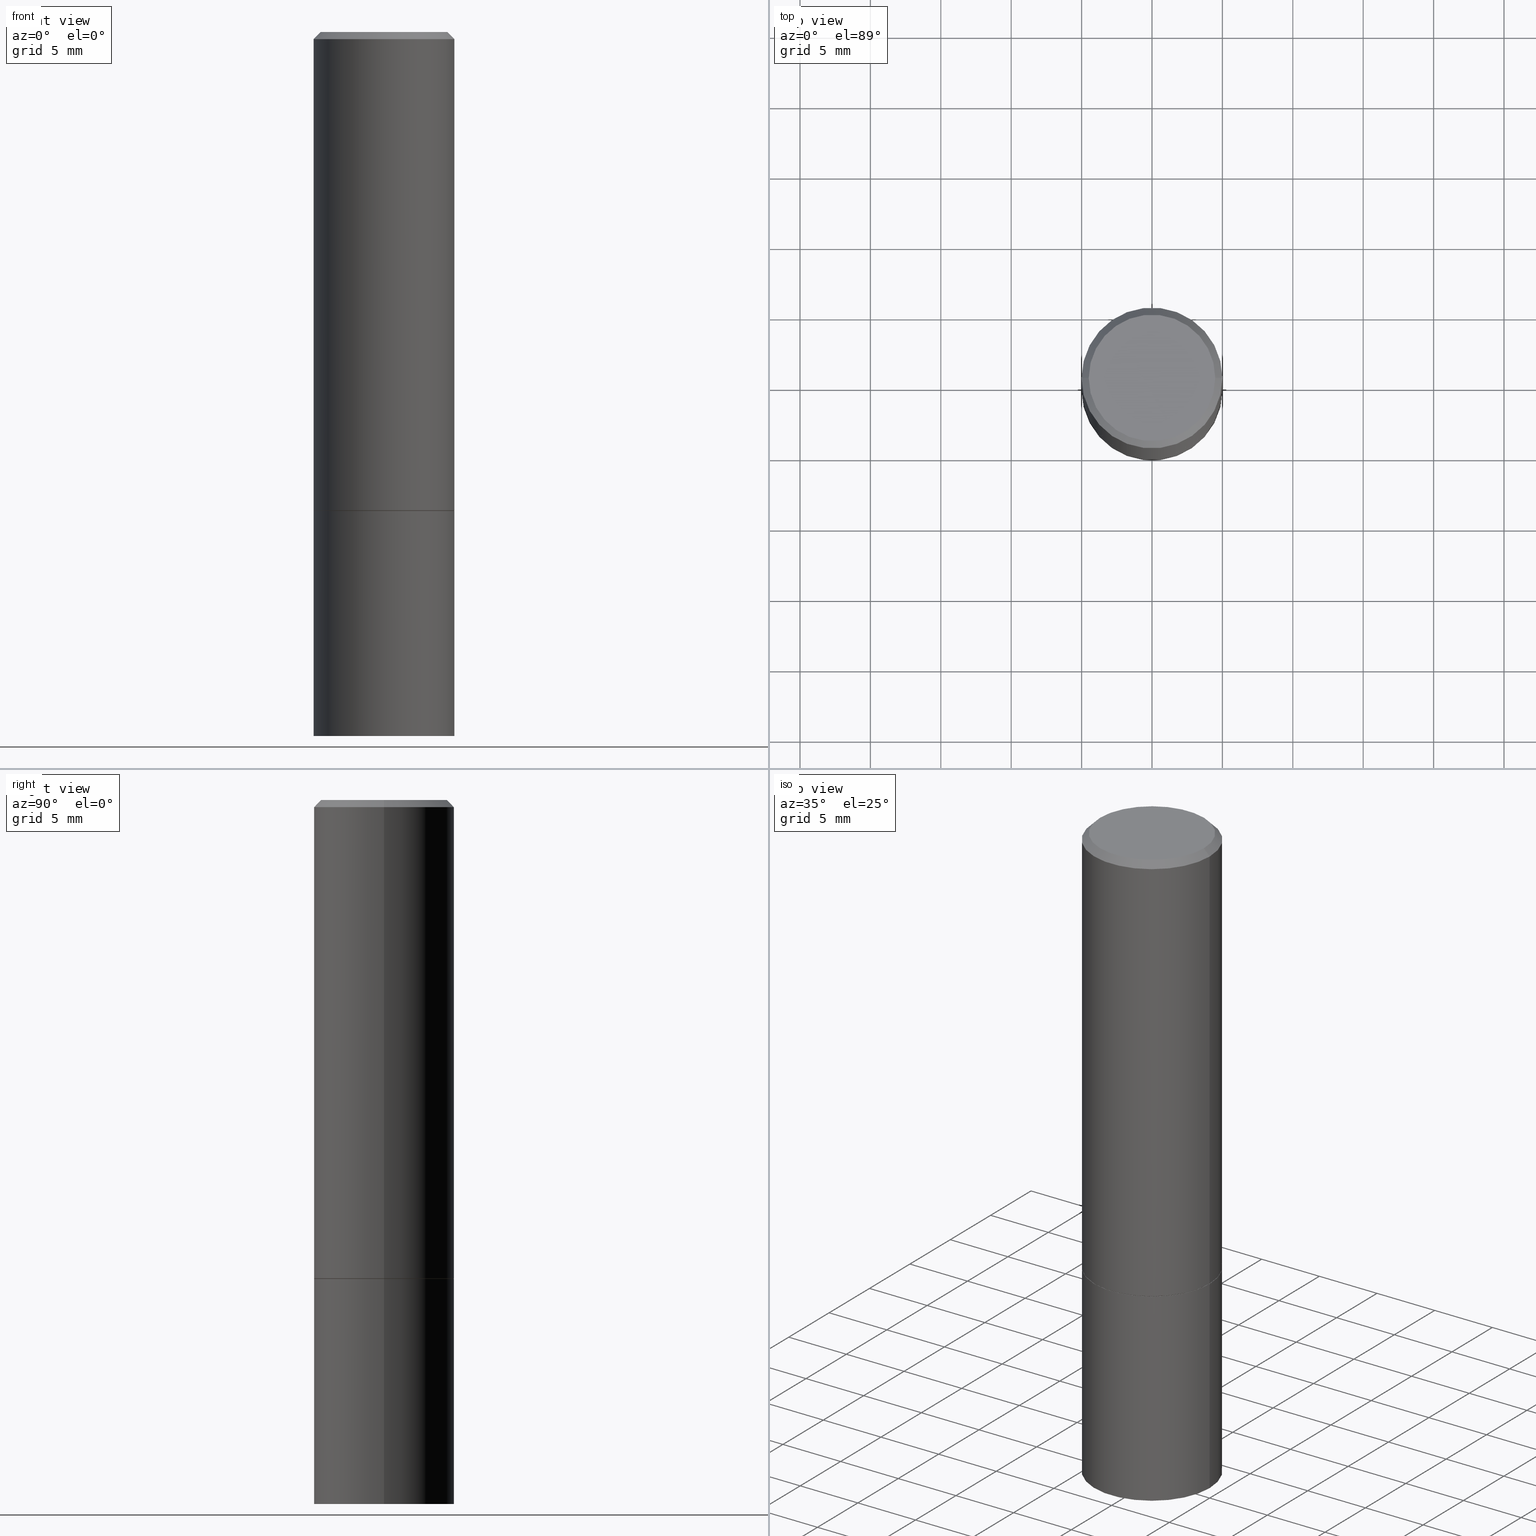
[diagram: canonical four-view strip — front | top / right | iso, engineering-drawing reading convention]
A machine part, canonical four-view strip (front | top / right | iso — engineering-drawing reading convention). The complete STEP part file that produces these views, byte-faithful:
ISO-10303-21;
HEADER;
FILE_DESCRIPTION (( 'STEP AP203' ),
    '1' );
FILE_NAME ('49317.STEP',
    '2024-02-28T18:18:21',
    ( '' ),
    ( '' ),
    'SwSTEP 2.0',
    'SolidWorks 2023',
    '' );
FILE_SCHEMA (( 'CONFIG_CONTROL_DESIGN' ));
ENDSEC;

DATA;
#1 = ADVANCED_FACE ( 'NONE', ( #120 ), #170, .F. ) ;
#2 = AXIS2_PLACEMENT_3D ( 'NONE', #160, #222, #10 ) ;
#3 = ORIENTED_EDGE ( 'NONE', *, *, #366, .T. ) ;
#4 = CARTESIAN_POINT ( 'NONE',  ( -0.1958499999999999963, -3.282098972189277957E-15, -1.338600000000000012 ) ) ;
#5 = CYLINDRICAL_SURFACE ( 'NONE', #31, 0.1968499999999999417 ) ;
#6 = DIRECTION ( 'NONE',  ( -1.000000000000000000, 6.982962677686266711E-15, 0.000000000000000000 ) ) ;
#7 = DIRECTION ( 'NONE',  ( 0.7071067811865353603, -2.468850131082130054E-15, 0.7071067811865595631 ) ) ;
#8 = LINE ( 'NONE', #257, #265 ) ;
#9 = AXIS2_PLACEMENT_3D ( 'NONE', #93, #244, #96 ) ;
#10 = DIRECTION ( 'NONE',  ( -1.000000000000000000, 6.982962677686265922E-15, -4.876176775795935793E-29 ) ) ;
#11 = ORIENTED_EDGE ( 'NONE', *, *, #119, .F. ) ;
#12 = FACE_OUTER_BOUND ( 'NONE', #209, .T. ) ;
#13 = CYLINDRICAL_SURFACE ( 'NONE', #132, 0.1968500000000000250 ) ;
#14 = FACE_OUTER_BOUND ( 'NONE', #168, .T. ) ;
#15 = ADVANCED_FACE ( 'NONE', ( #351 ), #5, .T. ) ;
#16 = AXIS2_PLACEMENT_3D ( 'NONE', #150, #290, #266 ) ;
#17 = APPROVAL_DATE_TIME ( #305, #167 ) ;
#18 = DIRECTION ( 'NONE',  ( -2.445468806185136597E-29, 3.491481338843145583E-15, 1.000000000000000000 ) ) ;
#19 = DATE_AND_TIME ( #193, #339 ) ;
#20 = PLANE ( 'NONE',  #81 ) ;
#21 = PERSON ( 'UNSPECIFIED', 'UNSPECIFIED', 'UNSPECIFIED', ('UNSPECIFIED'), ('UNSPECIFIED'), ('UNSPECIFIED') ) ;
#22 = DATE_AND_TIME ( #334, #111 ) ;
#23 = CC_DESIGN_SECURITY_CLASSIFICATION ( #235, ( #289 ) ) ;
#24 = LOCAL_TIME ( 13, 18, 21.00000000000000000, #155 ) ;
#25 = ORIENTED_EDGE ( 'NONE', *, *, #297, .T. ) ;
#26 = ORIENTED_EDGE ( 'NONE', *, *, #105, .T. ) ;
#27 = EDGE_CURVE ( 'NONE', #335, #238, #200, .T. ) ;
#28 = CIRCLE ( 'NONE', #233, 0.1968500000000000250 ) ;
#29 = ORIENTED_EDGE ( 'NONE', *, *, #157, .T. ) ;
#30 = CARTESIAN_POINT ( 'NONE',  ( -0.1768499999999998407, 1.269851762937246464E-15, -8.758475317130876682E-30 ) ) ;
#31 = AXIS2_PLACEMENT_3D ( 'NONE', #315, #229, #146 ) ;
#32 = ORIENTED_EDGE ( 'NONE', *, *, #102, .T. ) ;
#33 = DIRECTION ( 'NONE',  ( -0.7071067811865353603, 7.493145998870309984E-15, 0.7071067811865595631 ) ) ;
#34 = ORIENTED_EDGE ( 'NONE', *, *, #297, .F. ) ;
#35 = ORIENTED_EDGE ( 'NONE', *, *, #27, .F. ) ;
#36 = ADVANCED_FACE ( 'NONE', ( #204 ), #164, .T. ) ;
#37 = DIRECTION ( 'NONE',  ( -2.445468806185136597E-29, 3.491481338843145583E-15, 1.000000000000000000 ) ) ;
#38 = DESIGN_CONTEXT ( 'detailed design', #337, 'design' ) ;
#39 = DIRECTION ( 'NONE',  ( 1.000000000000000000, -6.982962677686266711E-15, 4.876176775795936353E-29 ) ) ;
#40 = AXIS2_PLACEMENT_3D ( 'NONE', #116, #322, #41 ) ;
#41 = DIRECTION ( 'NONE',  ( 1.000000000000000000, -6.982962677686266711E-15, 4.876176775795935793E-29 ) ) ;
#42 = CARTESIAN_POINT ( 'NONE',  ( 0.000000000000000000, 0.000000000000000000, 0.000000000000000000 ) ) ;
#43 = PERSON_AND_ORGANIZATION_ROLE ( 'creator' ) ;
#44 = DIRECTION ( 'NONE',  ( -2.445468806185136877E-29, 3.491481338843145188E-15, 1.000000000000000000 ) ) ;
#45 = DIMENSIONAL_EXPONENTS ( 1.000000000000000000, 0.000000000000000000, 0.000000000000000000, 0.000000000000000000, 0.000000000000000000, 0.000000000000000000, 0.000000000000000000 ) ;
#46 = DATE_TIME_ROLE ( 'classification_date' ) ;
#47 = CARTESIAN_POINT ( 'NONE',  ( 0.1968499999999998307, -1.420318657638187938E-15, -0.02000000000000004552 ) ) ;
#48 = AXIS2_PLACEMENT_3D ( 'NONE', #156, #247, #274 ) ;
#49 = LOCAL_TIME ( 13, 18, 21.00000000000000000, #129 ) ;
#50 = CARTESIAN_POINT ( 'NONE',  ( 3.273504543959423913E-29, -4.673696920175434737E-15, -1.338600000000000012 ) ) ;
#51 = COORDINATED_UNIVERSAL_TIME_OFFSET ( 5, 0, .BEHIND. ) ;
#52 = PERSON_AND_ORGANIZATION ( #21, #56 ) ;
#53 = ORIENTED_EDGE ( 'NONE', *, *, #201, .F. ) ;
#54 = VERTEX_POINT ( 'NONE', #30 ) ;
#55 = ORIENTED_EDGE ( 'NONE', *, *, #341, .F. ) ;
#56 = ORGANIZATION ( 'UNSPECIFIED', 'UNSPECIFIED', '' ) ;
#57 = EDGE_CURVE ( 'NONE', #163, #109, #8, .T. ) ;
#58 = ORIENTED_EDGE ( 'NONE', *, *, #252, .F. ) ;
#59 = ORIENTED_EDGE ( 'NONE', *, *, #281, .F. ) ;
#60 = AXIS2_PLACEMENT_3D ( 'NONE', #62, #175, #39 ) ;
#61 = PRODUCT_DEFINITION ( 'UNKNOWN', '', #289, #38 ) ;
#62 = CARTESIAN_POINT ( 'NONE',  ( 0.000000000000000000, 0.000000000000000000, 0.000000000000000000 ) ) ;
#63 = DIRECTION ( 'NONE',  ( 1.000000000000000000, -6.982962677686266711E-15, 4.876176775795936353E-29 ) ) ;
#64 = CARTESIAN_POINT ( 'NONE',  ( 3.273504543959423913E-29, -4.673696920175434737E-15, -1.338600000000000012 ) ) ;
#65 = VERTEX_POINT ( 'NONE', #291 ) ;
#66 = DIRECTION ( 'NONE',  ( 1.000000000000000000, -6.982962677686267499E-15, 0.000000000000000000 ) ) ;
#67 = CARTESIAN_POINT ( 'NONE',  ( 3.271059075153238310E-29, -4.670205438836591729E-15, -1.337599999999999900 ) ) ;
#68 = AXIS2_PLACEMENT_3D ( 'NONE', #327, #355, #302 ) ;
#69 = EDGE_CURVE ( 'NONE', #106, #313, #169, .T. ) ;
#70 = APPROVAL_STATUS ( 'not_yet_approved' ) ;
#71 = CARTESIAN_POINT ( 'NONE',  ( -0.1968499999999998307, 1.304766576325677324E-15, -0.02000000000000004552 ) ) ;
#72 = PERSON_AND_ORGANIZATION ( #21, #56 ) ;
#73 = CARTESIAN_POINT ( 'NONE',  ( -0.1968500000000000250, -4.374635592500326618E-15, -1.968500000000000139 ) ) ;
#74 = FACE_OUTER_BOUND ( 'NONE', #280, .T. ) ;
#75 = AXIS2_PLACEMENT_3D ( 'NONE', #202, #316, #219 ) ;
#76 = PERSON_AND_ORGANIZATION_ROLE ( 'creator' ) ;
#77 = ORIENTED_EDGE ( 'NONE', *, *, #341, .T. ) ;
#78 = CIRCLE ( 'NONE', #75, 0.1968499999999998307 ) ;
#79 = ORIENTED_EDGE ( 'NONE', *, *, #171, .F. ) ;
#80 = APPROVAL ( #70, 'UNSPECIFIED' ) ;
#81 = AXIS2_PLACEMENT_3D ( 'NONE', #331, #357, #152 ) ;
#82 = EDGE_LOOP ( 'NONE', ( #293, #77, #26, #312 ) ) ;
#83 = CARTESIAN_POINT ( 'NONE',  ( 0.000000000000000000, 0.000000000000000000, 0.000000000000000000 ) ) ;
#84 =( LENGTH_UNIT ( ) NAMED_UNIT ( * ) SI_UNIT ( $, .METRE. ) );
#85 = CARTESIAN_POINT ( 'NONE',  ( 0.1968499999999998307, -1.420318657638187938E-15, -0.02000000000000004552 ) ) ;
#86 = CARTESIAN_POINT ( 'NONE',  ( 0.1968500000000000250, -6.048293123277976345E-15, -1.338600000000000012 ) ) ;
#87 = AXIS2_PLACEMENT_3D ( 'NONE', #342, #203, #318 ) ;
#88 =( CONVERSION_BASED_UNIT ( 'INCH', #121 ) LENGTH_UNIT ( ) NAMED_UNIT ( #45 ) );
#89 = CARTESIAN_POINT ( 'NONE',  ( 4.890937612370284544E-31, -6.982962677686307633E-17, -0.02000000000000004552 ) ) ;
#90 = CARTESIAN_POINT ( 'NONE',  ( 4.813905344975441835E-29, -6.872981015512731707E-15, -1.968500000000000139 ) ) ;
#91 = CARTESIAN_POINT ( 'NONE',  ( 3.273504543959423913E-29, -4.673696920175434737E-15, -1.338600000000000012 ) ) ;
#92 = CC_DESIGN_DATE_AND_TIME_ASSIGNMENT ( #19, #46, ( #235 ) ) ;
#93 = CARTESIAN_POINT ( 'NONE',  ( 1.374596203102589532E-15, 0.1968499999999931416, -1.968500000000000805 ) ) ;
#94 = AXIS2_PLACEMENT_3D ( 'NONE', #83, #323, #63 ) ;
#95 = CALENDAR_DATE ( 2024, 28, 2 ) ;
#96 = DIRECTION ( 'NONE',  ( -1.000000000000000000, 6.982962677686265922E-15, -4.876176775795935793E-29 ) ) ;
#97 = PERSON_AND_ORGANIZATION ( #21, #56 ) ;
#98 = UNCERTAINTY_MEASURE_WITH_UNIT (LENGTH_MEASURE( 1.000000000000000082E-05 ), #88, 'distance_accuracy_value', 'NONE');
#99 = CC_DESIGN_PERSON_AND_ORGANIZATION_ASSIGNMENT ( #248, #153, ( #289 ) ) ;
#100 = CARTESIAN_POINT ( 'NONE',  ( 3.273504543959423913E-29, -4.673696920175434737E-15, -1.338600000000000012 ) ) ;
#101 = APPROVAL_DATE_TIME ( #22, #80 ) ;
#102 = EDGE_CURVE ( 'NONE', #54, #335, #360, .T. ) ;
#103 = DIRECTION ( 'NONE',  ( 1.000000000000000000, -6.982962677686265922E-15, 4.876176775795935793E-29 ) ) ;
#104 = AXIS2_PLACEMENT_3D ( 'NONE', #91, #304, #216 ) ;
#105 = EDGE_CURVE ( 'NONE', #172, #114, #115, .T. ) ;
#106 = VERTEX_POINT ( 'NONE', #340 ) ;
#107 = ORIENTED_EDGE ( 'NONE', *, *, #201, .T. ) ;
#108 = CIRCLE ( 'NONE', #48, 0.1968500000000000250 ) ;
#109 = VERTEX_POINT ( 'NONE', #345 ) ;
#110 = CONICAL_SURFACE ( 'NONE', #225, 0.1958499999999999963, 0.7853981633974311816 ) ;
#111 = LOCAL_TIME ( 13, 18, 21.00000000000000000, #275 ) ;
#112 = EDGE_LOOP ( 'NONE', ( #253, #363, #261, #365 ) ) ;
#113 = PERSON_AND_ORGANIZATION ( #21, #56 ) ;
#114 = VERTEX_POINT ( 'NONE', #86 ) ;
#115 = LINE ( 'NONE', #231, #242 ) ;
#116 = CARTESIAN_POINT ( 'NONE',  ( 0.000000000000000000, 0.000000000000000000, 0.000000000000000000 ) ) ;
#117 = EDGE_LOOP ( 'NONE', ( #11, #349, #264, #34 ) ) ;
#118 = CARTESIAN_POINT ( 'NONE',  ( -0.1968499999999998307, 1.304766576325677324E-15, -0.02000000000000004552 ) ) ;
#119 = EDGE_CURVE ( 'NONE', #335, #54, #181, .T. ) ;
#120 = FACE_OUTER_BOUND ( 'NONE', #311, .T. ) ;
#121 = LENGTH_MEASURE_WITH_UNIT ( LENGTH_MEASURE( 0.02539999999999999897 ), #84 );
#122 = DIRECTION ( 'NONE',  ( -2.445468806185136597E-29, 3.491481338843145583E-15, 1.000000000000000000 ) ) ;
#123 = DATE_TIME_ROLE ( 'creation_date' ) ;
#124 = CARTESIAN_POINT ( 'NONE',  ( -0.1968499999999999417, 1.398703375343756802E-15, -9.682923725166779474E-30 ) ) ;
#125 = AXIS2_PLACEMENT_3D ( 'NONE', #178, #227, #236 ) ;
#126 = APPROVAL_ROLE ( '' ) ;
#127 = DIRECTION ( 'NONE',  ( 1.000000000000000000, -6.982962677686268288E-15, 0.000000000000000000 ) ) ;
#128 = EDGE_CURVE ( 'NONE', #137, #238, #78, .T. ) ;
#129 = COORDINATED_UNIVERSAL_TIME_OFFSET ( 5, 0, .BEHIND. ) ;
#130 = CARTESIAN_POINT ( 'NONE',  ( 0.1968499999999999417, -1.374596203102541214E-15, 9.598753983154296654E-30 ) ) ;
#131 = VECTOR ( 'NONE', #44, 39.37007874015748143 ) ;
#132 = AXIS2_PLACEMENT_3D ( 'NONE', #42, #300, #103 ) ;
#133 = CIRCLE ( 'NONE', #333, 0.1968500000000000250 ) ;
#134 = APPROVAL_ROLE ( '' ) ;
#135 = ORIENTED_EDGE ( 'NONE', *, *, #69, .T. ) ;
#136 = ORIENTED_EDGE ( 'NONE', *, *, #356, .T. ) ;
#137 = VERTEX_POINT ( 'NONE', #71 ) ;
#138 = AXIS2_PLACEMENT_3D ( 'NONE', #245, #269, #154 ) ;
#139 = ORIENTED_EDGE ( 'NONE', *, *, #119, .T. ) ;
#140 = ORIENTED_EDGE ( 'NONE', *, *, #310, .T. ) ;
#141 = DIRECTION ( 'NONE',  ( -2.445468806185136877E-29, 3.491481338843145188E-15, 1.000000000000000000 ) ) ;
#142 = AXIS2_PLACEMENT_3D ( 'NONE', #284, #296, #260 ) ;
#143 = DIRECTION ( 'NONE',  ( 1.000000000000000000, -6.982962677686266711E-15, 0.000000000000000000 ) ) ;
#144 = EDGE_LOOP ( 'NONE', ( #166, #136 ) ) ;
#145 = CC_DESIGN_PERSON_AND_ORGANIZATION_ASSIGNMENT ( #278, #76, ( #289 ) ) ;
#146 = DIRECTION ( 'NONE',  ( 1.000000000000000000, -6.982962677686266711E-15, 4.876176775795935793E-29 ) ) ;
#147 = DIRECTION ( 'NONE',  ( -0.7071067811865465735, 2.468850131082246805E-15, -0.7071067811865484609 ) ) ;
#148 = DIRECTION ( 'NONE',  ( 0.7071067811865465735, -7.319954787623252890E-15, -0.7071067811865484609 ) ) ;
#149 = ADVANCED_FACE ( 'NONE', ( #185 ), #353, .T. ) ;
#150 = CARTESIAN_POINT ( 'NONE',  ( 0.000000000000000000, 0.000000000000000000, 0.000000000000000000 ) ) ;
#151 = ORIENTED_EDGE ( 'NONE', *, *, #128, .F. ) ;
#152 = DIRECTION ( 'NONE',  ( -1.000000000000000000, 6.982962677686265922E-15, -4.876176775795935793E-29 ) ) ;
#153 = PERSON_AND_ORGANIZATION_ROLE ( 'design_supplier' ) ;
#154 = DIRECTION ( 'NONE',  ( -1.000000000000000000, 6.982962677686266711E-15, 0.000000000000000000 ) ) ;
#155 = COORDINATED_UNIVERSAL_TIME_OFFSET ( 5, 0, .BEHIND. ) ;
#156 = CARTESIAN_POINT ( 'NONE',  ( 3.273504543959423913E-29, -4.673696920175434737E-15, -1.338600000000000012 ) ) ;
#157 = EDGE_CURVE ( 'NONE', #65, #343, #198, .T. ) ;
#158 = APPROVAL_PERSON_ORGANIZATION ( #52, #167, #328 ) ;
#159 = APPROVAL_DATE_TIME ( #246, #329 ) ;
#160 = CARTESIAN_POINT ( 'NONE',  ( 1.374596203102574149E-15, 0.1968499999999953343, -1.338600000000000900 ) ) ;
#161 = COORDINATED_UNIVERSAL_TIME_OFFSET ( 5, 0, .BEHIND. ) ;
#162 = ADVANCED_FACE ( 'NONE', ( #271 ), #288, .T. ) ;
#163 = VERTEX_POINT ( 'NONE', #73 ) ;
#164 = CONICAL_SURFACE ( 'NONE', #364, 0.1968499999999998307, 0.7853981633974469467 ) ;
#165 = EDGE_LOOP ( 'NONE', ( #254, #55 ) ) ;
#166 = ORIENTED_EDGE ( 'NONE', *, *, #252, .T. ) ;
#167 = APPROVAL ( #188, 'UNSPECIFIED' ) ;
#168 = EDGE_LOOP ( 'NONE', ( #32, #139 ) ) ;
#169 = CIRCLE ( 'NONE', #125, 0.1968500000000000527 ) ;
#170 = PLANE ( 'NONE',  #142 ) ;
#171 = EDGE_CURVE ( 'NONE', #313, #238, #211, .T. ) ;
#172 = VERTEX_POINT ( 'NONE', #218 ) ;
#173 = AXIS2_PLACEMENT_3D ( 'NONE', #67, #122, #276 ) ;
#174 = APPLICATION_PROTOCOL_DEFINITION ( 'international standard', 'config_control_design', 1994, #285 ) ;
#175 = DIRECTION ( 'NONE',  ( -2.445468806185136597E-29, 3.491481338843145583E-15, 1.000000000000000000 ) ) ;
#176 = DIRECTION ( 'NONE',  ( -2.445468806185136597E-29, 3.491481338843145583E-15, 1.000000000000000000 ) ) ;
#177 = ORIENTED_EDGE ( 'NONE', *, *, #171, .T. ) ;
#178 = CARTESIAN_POINT ( 'NONE',  ( 3.271059075153238310E-29, -4.670205438836591729E-15, -1.337599999999999900 ) ) ;
#179 = FACE_OUTER_BOUND ( 'NONE', #324, .T. ) ;
#180 = PRODUCT ( '49317', '49317', '', ( #292 ) ) ;
#181 = CIRCLE ( 'NONE', #94, 0.1768499999999998407 ) ;
#182 = CC_DESIGN_APPROVAL ( #167, ( #61 ) ) ;
#183 = LINE ( 'NONE', #124, #273 ) ;
#184 =( GEOMETRIC_REPRESENTATION_CONTEXT ( 3 ) GLOBAL_UNCERTAINTY_ASSIGNED_CONTEXT ( ( #98 ) ) GLOBAL_UNIT_ASSIGNED_CONTEXT ( ( #88, #286, #295 ) ) REPRESENTATION_CONTEXT ( 'NONE', 'WORKASPACE' ) );
#185 = FACE_OUTER_BOUND ( 'NONE', #165, .T. ) ;
#186 = APPLICATION_PROTOCOL_DEFINITION ( 'international standard', 'config_control_design', 1994, #337 ) ;
#187 = DIRECTION ( 'NONE',  ( 1.000000000000000000, -6.982962677686268288E-15, 0.000000000000000000 ) ) ;
#188 = APPROVAL_STATUS ( 'not_yet_approved' ) ;
#189 = FACE_OUTER_BOUND ( 'NONE', #144, .T. ) ;
#190 = VECTOR ( 'NONE', #147, 39.37007874015748143 ) ;
#191 = ADVANCED_FACE ( 'NONE', ( #14 ), #20, .F. ) ;
#192 = CC_DESIGN_PERSON_AND_ORGANIZATION_ASSIGNMENT ( #72, #332, ( #235 ) ) ;
#193 = CALENDAR_DATE ( 2024, 28, 2 ) ;
#194 = ORIENTED_EDGE ( 'NONE', *, *, #157, .F. ) ;
#195 = ORIENTED_EDGE ( 'NONE', *, *, #128, .T. ) ;
#196 = ADVANCED_FACE ( 'NONE', ( #240 ), #110, .T. ) ;
#197 = EDGE_LOOP ( 'NONE', ( #29, #3, #53, #206 ) ) ;
#198 = CIRCLE ( 'NONE', #104, 0.1958499999999999963 ) ;
#199 = APPROVAL_PERSON_ORGANIZATION ( #270, #329, #134 ) ;
#200 = LINE ( 'NONE', #85, #354 ) ;
#201 = EDGE_CURVE ( 'NONE', #313, #106, #336, .T. ) ;
#202 = CARTESIAN_POINT ( 'NONE',  ( 4.890937612370284544E-31, -6.982962677686307633E-17, -0.02000000000000004552 ) ) ;
#203 = DIRECTION ( 'NONE',  ( 0.000000000000000000, 0.000000000000000000, 1.000000000000000000 ) ) ;
#204 = FACE_OUTER_BOUND ( 'NONE', #117, .T. ) ;
#205 = CARTESIAN_POINT ( 'NONE',  ( 4.813905344975441835E-29, -6.872981015512731707E-15, -1.968500000000000139 ) ) ;
#206 = ORIENTED_EDGE ( 'NONE', *, *, #348, .F. ) ;
#207 = CARTESIAN_POINT ( 'NONE',  ( -0.1958499999999999963, -3.276800517841055949E-15, -1.338600000000000012 ) ) ;
#208 = ADVANCED_FACE ( 'NONE', ( #359 ), #13, .T. ) ;
#209 = EDGE_LOOP ( 'NONE', ( #140, #309, #58, #224 ) ) ;
#210 = CARTESIAN_POINT ( 'NONE',  ( 4.890937612370284544E-31, -6.982962677686307633E-17, -0.02000000000000004552 ) ) ;
#211 = LINE ( 'NONE', #130, #131 ) ;
#212 = LINE ( 'NONE', #4, #226 ) ;
#213 = ADVANCED_BREP_SHAPE_REPRESENTATION ( '49317', ( #344, #223, #87 ), #184 ) ;
#214 = CIRCLE ( 'NONE', #258, 0.1968499999999998307 ) ;
#215 = CIRCLE ( 'NONE', #314, 0.1968500000000000250 ) ;
#216 = DIRECTION ( 'NONE',  ( 1.000000000000000000, -6.982962677686268288E-15, 0.000000000000000000 ) ) ;
#217 = DATE_AND_TIME ( #95, #49 ) ;
#218 = CARTESIAN_POINT ( 'NONE',  ( 0.1968500000000000250, -8.247577218615273316E-15, -1.968500000000000139 ) ) ;
#219 = DIRECTION ( 'NONE',  ( 1.000000000000000000, -6.982962677686266711E-15, 0.000000000000000000 ) ) ;
#220 = SECURITY_CLASSIFICATION_LEVEL ( 'unclassified' ) ;
#221 = ADVANCED_FACE ( 'NONE', ( #74 ), #279, .T. ) ;
#222 = DIRECTION ( 'NONE',  ( 2.438088387897960049E-29, -3.491481338843145188E-15, -1.000000000000000000 ) ) ;
#223 = MANIFOLD_SOLID_BREP ( 'Body-Move/Copy2[2]', #306 ) ;
#224 = ORIENTED_EDGE ( 'NONE', *, *, #105, .F. ) ;
#225 = AXIS2_PLACEMENT_3D ( 'NONE', #50, #326, #187 ) ;
#226 = VECTOR ( 'NONE', #33, 39.37007874015748854 ) ;
#227 = DIRECTION ( 'NONE',  ( -2.445468806185136597E-29, 3.491481338843145583E-15, 1.000000000000000000 ) ) ;
#228 = PERSON_AND_ORGANIZATION_ROLE ( 'design_owner' ) ;
#229 = DIRECTION ( 'NONE',  ( -2.445468806185136597E-29, 3.491481338843145583E-15, 1.000000000000000000 ) ) ;
#230 = PRODUCT_RELATED_PRODUCT_CATEGORY ( 'detail', '', ( #180 ) ) ;
#231 = CARTESIAN_POINT ( 'NONE',  ( 0.1968500000000000250, -1.374596203102541608E-15, 9.598753983154300858E-30 ) ) ;
#232 = EDGE_CURVE ( 'NONE', #106, #137, #183, .T. ) ;
#233 = AXIS2_PLACEMENT_3D ( 'NONE', #205, #325, #239 ) ;
#234 = LINE ( 'NONE', #118, #190 ) ;
#235 = SECURITY_CLASSIFICATION ( '', '', #220 ) ;
#236 = DIRECTION ( 'NONE',  ( 1.000000000000000000, -6.982962677686266711E-15, 0.000000000000000000 ) ) ;
#237 = CARTESIAN_POINT ( 'NONE',  ( 0.1968500000000000527, -6.044801641939134127E-15, -1.337599999999999900 ) ) ;
#238 = VERTEX_POINT ( 'NONE', #47 ) ;
#239 = DIRECTION ( 'NONE',  ( 1.000000000000000000, -6.982962677686267499E-15, 0.000000000000000000 ) ) ;
#240 = FACE_OUTER_BOUND ( 'NONE', #112, .T. ) ;
#241 = SHAPE_DEFINITION_REPRESENTATION ( #358, #213 ) ;
#242 = VECTOR ( 'NONE', #141, 39.37007874015748143 ) ;
#243 = CC_DESIGN_APPROVAL ( #329, ( #235 ) ) ;
#244 = DIRECTION ( 'NONE',  ( 2.438088387897960049E-29, -3.491481338843145188E-15, -1.000000000000000000 ) ) ;
#245 = CARTESIAN_POINT ( 'NONE',  ( 4.890937612370284544E-31, -6.982962677686307633E-17, -0.02000000000000004552 ) ) ;
#246 = DATE_AND_TIME ( #303, #24 ) ;
#247 = DIRECTION ( 'NONE',  ( -2.445468806185136597E-29, 3.491481338843145583E-15, 1.000000000000000000 ) ) ;
#248 = PERSON_AND_ORGANIZATION ( #21, #56 ) ;
#249 = CLOSED_SHELL ( 'NONE', ( #317, #149, #262, #208 ) ) ;
#250 = LOCAL_TIME ( 13, 18, 21.00000000000000000, #51 ) ;
#251 = EDGE_LOOP ( 'NONE', ( #256, #135, #177, #151 ) ) ;
#252 = EDGE_CURVE ( 'NONE', #114, #109, #108, .T. ) ;
#253 = ORIENTED_EDGE ( 'NONE', *, *, #366, .F. ) ;
#254 = ORIENTED_EDGE ( 'NONE', *, *, #310, .F. ) ;
#255 = EDGE_CURVE ( 'NONE', #343, #65, #320, .T. ) ;
#256 = ORIENTED_EDGE ( 'NONE', *, *, #232, .F. ) ;
#257 = CARTESIAN_POINT ( 'NONE',  ( -0.1968500000000000250, 1.398703375343757393E-15, -9.682923725166783677E-30 ) ) ;
#258 = AXIS2_PLACEMENT_3D ( 'NONE', #210, #37, #143 ) ;
#259 = CARTESIAN_POINT ( 'NONE',  ( 0.1958499999999999963, -6.041310160600290331E-15, -1.338600000000000012 ) ) ;
#260 = DIRECTION ( 'NONE',  ( 1.000000000000000000, -6.982962677686265922E-15, 4.876176775795935793E-29 ) ) ;
#261 = ORIENTED_EDGE ( 'NONE', *, *, #348, .T. ) ;
#262 = ADVANCED_FACE ( 'NONE', ( #189 ), #308, .F. ) ;
#263 = CYLINDRICAL_SURFACE ( 'NONE', #16, 0.1968500000000000250 ) ;
#264 = ORIENTED_EDGE ( 'NONE', *, *, #281, .T. ) ;
#265 = VECTOR ( 'NONE', #319, 39.37007874015748143 ) ;
#266 = DIRECTION ( 'NONE',  ( 1.000000000000000000, -6.982962677686265922E-15, 4.876176775795935793E-29 ) ) ;
#267 = DIRECTION ( 'NONE',  ( 2.445468806185136597E-29, -3.491481338843145583E-15, -1.000000000000000000 ) ) ;
#268 = LINE ( 'NONE', #259, #321 ) ;
#269 = DIRECTION ( 'NONE',  ( 2.445468806185136597E-29, -3.491481338843145583E-15, -1.000000000000000000 ) ) ;
#270 = PERSON_AND_ORGANIZATION ( #21, #56 ) ;
#271 = FACE_OUTER_BOUND ( 'NONE', #197, .T. ) ;
#272 = PERSON_AND_ORGANIZATION ( #21, #56 ) ;
#273 = VECTOR ( 'NONE', #330, 39.37007874015748143 ) ;
#274 = DIRECTION ( 'NONE',  ( 1.000000000000000000, -6.982962677686267499E-15, 0.000000000000000000 ) ) ;
#275 = COORDINATED_UNIVERSAL_TIME_OFFSET ( 5, 0, .BEHIND. ) ;
#276 = DIRECTION ( 'NONE',  ( 1.000000000000000000, -6.982962677686266711E-15, 0.000000000000000000 ) ) ;
#277 = APPROVAL_STATUS ( 'not_yet_approved' ) ;
#278 = PERSON_AND_ORGANIZATION ( #21, #56 ) ;
#279 = CONICAL_SURFACE ( 'NONE', #138, 0.1968499999999998307, 0.7853981633974469467 ) ;
#280 = EDGE_LOOP ( 'NONE', ( #35, #338, #25, #195 ) ) ;
#281 = EDGE_CURVE ( 'NONE', #238, #137, #214, .T. ) ;
#282 = CC_DESIGN_DATE_AND_TIME_ASSIGNMENT ( #217, #123, ( #61 ) ) ;
#283 = ORIENTED_EDGE ( 'NONE', *, *, #232, .T. ) ;
#284 = CARTESIAN_POINT ( 'NONE',  ( 3.273504543959423913E-29, -4.673696920175434737E-15, -1.338600000000000012 ) ) ;
#285 = APPLICATION_CONTEXT ( 'configuration controlled 3d designs of mechanical parts and assemblies' ) ;
#286 =( NAMED_UNIT ( * ) PLANE_ANGLE_UNIT ( ) SI_UNIT ( $, .RADIAN. ) );
#287 = ORIENTED_EDGE ( 'NONE', *, *, #255, .F. ) ;
#288 = CONICAL_SURFACE ( 'NONE', #68, 0.1958499999999999963, 0.7853981633974311816 ) ;
#289 = PRODUCT_DEFINITION_FORMATION_WITH_SPECIFIED_SOURCE ( 'ANY', '', #180, .NOT_KNOWN. ) ;
#290 = DIRECTION ( 'NONE',  ( -2.445468806185136597E-29, 3.491481338843145583E-15, 1.000000000000000000 ) ) ;
#291 = CARTESIAN_POINT ( 'NONE',  ( 0.1958499999999999963, -6.041310160600290331E-15, -1.338600000000000012 ) ) ;
#292 = MECHANICAL_CONTEXT ( 'NONE', #285, 'mechanical' ) ;
#293 = ORIENTED_EDGE ( 'NONE', *, *, #57, .F. ) ;
#294 = CC_DESIGN_PERSON_AND_ORGANIZATION_ASSIGNMENT ( #113, #228, ( #180 ) ) ;
#295 =( NAMED_UNIT ( * ) SI_UNIT ( $, .STERADIAN. ) SOLID_ANGLE_UNIT ( ) );
#296 = DIRECTION ( 'NONE',  ( -2.438088387897960049E-29, 3.491481338843145188E-15, 1.000000000000000000 ) ) ;
#297 = EDGE_CURVE ( 'NONE', #54, #137, #234, .T. ) ;
#298 = CC_DESIGN_PERSON_AND_ORGANIZATION_ASSIGNMENT ( #97, #43, ( #61 ) ) ;
#299 = CYLINDRICAL_SURFACE ( 'NONE', #40, 0.1968499999999999417 ) ;
#300 = DIRECTION ( 'NONE',  ( -2.445468806185136597E-29, 3.491481338843145583E-15, 1.000000000000000000 ) ) ;
#301 = CALENDAR_DATE ( 2024, 28, 2 ) ;
#302 = DIRECTION ( 'NONE',  ( 1.000000000000000000, -6.982962677686268288E-15, 0.000000000000000000 ) ) ;
#303 = CALENDAR_DATE ( 2024, 28, 2 ) ;
#304 = DIRECTION ( 'NONE',  ( -2.445468806185136597E-29, 3.491481338843145583E-15, 1.000000000000000000 ) ) ;
#305 = DATE_AND_TIME ( #301, #250 ) ;
#306 = CLOSED_SHELL ( 'NONE', ( #162, #361, #36, #221, #15, #196, #1, #191 ) ) ;
#307 = APPROVAL_PERSON_ORGANIZATION ( #272, #80, #126 ) ;
#308 = PLANE ( 'NONE',  #2 ) ;
#309 = ORIENTED_EDGE ( 'NONE', *, *, #57, .T. ) ;
#310 = EDGE_CURVE ( 'NONE', #172, #163, #28, .T. ) ;
#311 = EDGE_LOOP ( 'NONE', ( #194, #287 ) ) ;
#312 = ORIENTED_EDGE ( 'NONE', *, *, #356, .F. ) ;
#313 = VERTEX_POINT ( 'NONE', #237 ) ;
#314 = AXIS2_PLACEMENT_3D ( 'NONE', #64, #176, #347 ) ;
#315 = CARTESIAN_POINT ( 'NONE',  ( 0.000000000000000000, 0.000000000000000000, 0.000000000000000000 ) ) ;
#316 = DIRECTION ( 'NONE',  ( -2.445468806185136597E-29, 3.491481338843145583E-15, 1.000000000000000000 ) ) ;
#317 = ADVANCED_FACE ( 'NONE', ( #12 ), #263, .T. ) ;
#318 = DIRECTION ( 'NONE',  ( 1.000000000000000000, 0.000000000000000000, 0.000000000000000000 ) ) ;
#319 = DIRECTION ( 'NONE',  ( -2.445468806185136877E-29, 3.491481338843145188E-15, 1.000000000000000000 ) ) ;
#320 = CIRCLE ( 'NONE', #346, 0.1958499999999999963 ) ;
#321 = VECTOR ( 'NONE', #7, 39.37007874015748854 ) ;
#322 = DIRECTION ( 'NONE',  ( -2.445468806185136597E-29, 3.491481338843145583E-15, 1.000000000000000000 ) ) ;
#323 = DIRECTION ( 'NONE',  ( -2.445468806185136597E-29, 3.491481338843145583E-15, 1.000000000000000000 ) ) ;
#324 = EDGE_LOOP ( 'NONE', ( #107, #283, #59, #79 ) ) ;
#325 = DIRECTION ( 'NONE',  ( -2.445468806185136597E-29, 3.491481338843145583E-15, 1.000000000000000000 ) ) ;
#326 = DIRECTION ( 'NONE',  ( -2.445468806185136597E-29, 3.491481338843145583E-15, 1.000000000000000000 ) ) ;
#327 = CARTESIAN_POINT ( 'NONE',  ( 3.273504543959423913E-29, -4.673696920175434737E-15, -1.338600000000000012 ) ) ;
#328 = APPROVAL_ROLE ( '' ) ;
#329 = APPROVAL ( #277, 'UNSPECIFIED' ) ;
#330 = DIRECTION ( 'NONE',  ( -2.445468806185136877E-29, 3.491481338843145188E-15, 1.000000000000000000 ) ) ;
#331 = CARTESIAN_POINT ( 'NONE',  ( 1.234936949548815012E-15, 0.1768499999999998407, -6.174684747744098725E-16 ) ) ;
#332 = PERSON_AND_ORGANIZATION_ROLE ( 'classification_officer' ) ;
#333 = AXIS2_PLACEMENT_3D ( 'NONE', #90, #352, #66 ) ;
#334 = CALENDAR_DATE ( 2024, 28, 2 ) ;
#335 = VERTEX_POINT ( 'NONE', #350 ) ;
#336 = CIRCLE ( 'NONE', #173, 0.1968500000000000527 ) ;
#337 = APPLICATION_CONTEXT ( 'configuration controlled 3d designs of mechanical parts and assemblies' ) ;
#338 = ORIENTED_EDGE ( 'NONE', *, *, #102, .F. ) ;
#339 = LOCAL_TIME ( 13, 18, 21.00000000000000000, #161 ) ;
#340 = CARTESIAN_POINT ( 'NONE',  ( -0.1968500000000000527, -9.713141574629691345E-16, -1.337599999999999900 ) ) ;
#341 = EDGE_CURVE ( 'NONE', #163, #172, #133, .T. ) ;
#342 = CARTESIAN_POINT ( 'NONE',  ( 0.000000000000000000, 0.000000000000000000, 0.000000000000000000 ) ) ;
#343 = VERTEX_POINT ( 'NONE', #207 ) ;
#344 = MANIFOLD_SOLID_BREP ( 'Body-Move/Copy2[1]', #249 ) ;
#345 = CARTESIAN_POINT ( 'NONE',  ( -0.1968500000000000250, -4.374635592500326618E-15, -1.338600000000000012 ) ) ;
#346 = AXIS2_PLACEMENT_3D ( 'NONE', #100, #18, #127 ) ;
#347 = DIRECTION ( 'NONE',  ( 1.000000000000000000, -6.982962677686267499E-15, 0.000000000000000000 ) ) ;
#348 = EDGE_CURVE ( 'NONE', #65, #313, #268, .T. ) ;
#349 = ORIENTED_EDGE ( 'NONE', *, *, #27, .T. ) ;
#350 = CARTESIAN_POINT ( 'NONE',  ( 0.1768499999999998407, -1.316798864272041155E-15, 8.922390245354091239E-30 ) ) ;
#351 = FACE_OUTER_BOUND ( 'NONE', #251, .T. ) ;
#352 = DIRECTION ( 'NONE',  ( -2.445468806185136597E-29, 3.491481338843145583E-15, 1.000000000000000000 ) ) ;
#353 = PLANE ( 'NONE',  #9 ) ;
#354 = VECTOR ( 'NONE', #148, 39.37007874015748143 ) ;
#355 = DIRECTION ( 'NONE',  ( -2.445468806185136597E-29, 3.491481338843145583E-15, 1.000000000000000000 ) ) ;
#356 = EDGE_CURVE ( 'NONE', #109, #114, #215, .T. ) ;
#357 = DIRECTION ( 'NONE',  ( 2.438088387897960049E-29, -3.491481338843145188E-15, -1.000000000000000000 ) ) ;
#358 = PRODUCT_DEFINITION_SHAPE ( 'NONE', 'NONE',  #61 ) ;
#359 = FACE_OUTER_BOUND ( 'NONE', #82, .T. ) ;
#360 = CIRCLE ( 'NONE', #60, 0.1768499999999998407 ) ;
#361 = ADVANCED_FACE ( 'NONE', ( #179 ), #299, .T. ) ;
#362 = CC_DESIGN_APPROVAL ( #80, ( #289 ) ) ;
#363 = ORIENTED_EDGE ( 'NONE', *, *, #255, .T. ) ;
#364 = AXIS2_PLACEMENT_3D ( 'NONE', #89, #267, #6 ) ;
#365 = ORIENTED_EDGE ( 'NONE', *, *, #69, .F. ) ;
#366 = EDGE_CURVE ( 'NONE', #343, #106, #212, .T. ) ;
ENDSEC;
END-ISO-10303-21;
